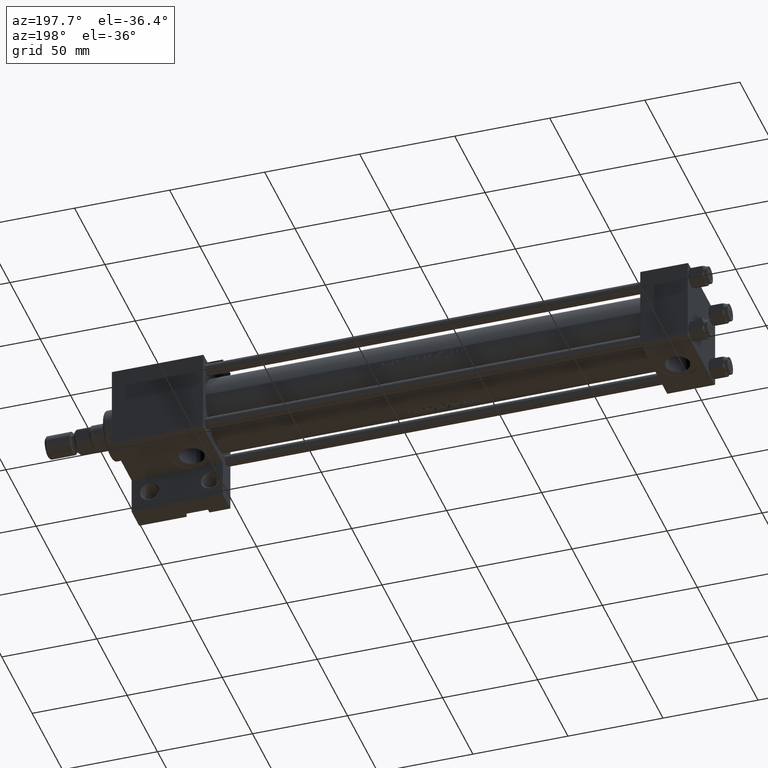
[diagram: clean part render]
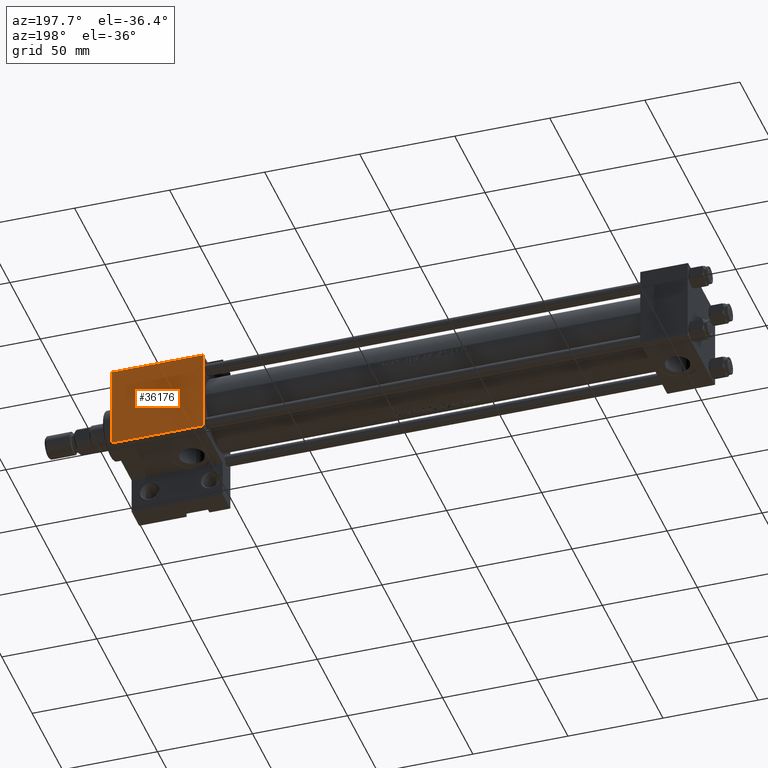
[diagram: same view with one face highlighted and labeled with its STEP entity id]
A machine part, auxiliary view. The second image highlights one B-rep face of the part: STEP entity #36176.
In plain terms, the highlighted planar face has unit normal (0, -1, -0).
Its self-contained STEP definition (entity closure, byte-faithful):
#1075 = DIRECTION ( 'NONE',  ( 1.000000000000000000, 0.000000000000000000, 0.000000000000000000 ) ) ;
#1483 = VECTOR ( 'NONE', #6542, 1000.000000000000000 ) ;
#3406 = ORIENTED_EDGE ( 'NONE', *, *, #28417, .T. ) ;
#5357 = DIRECTION ( 'NONE',  ( -1.000000000000000000, 0.000000000000000000, 0.000000000000000000 ) ) ;
#6542 = DIRECTION ( 'NONE',  ( 0.000000000000000000, -1.000000000000000000, -2.312964634635742957E-16 ) ) ;
#8483 = CARTESIAN_POINT ( 'NONE',  ( 255.0000000000000000, -21.99999999999995381, 22.49999999999999289 ) ) ;
#9678 = EDGE_CURVE ( 'NONE', #45796, #34855, #28319, .T. ) ;
#11317 = VERTEX_POINT ( 'NONE', #17136 ) ;
#12182 = ORIENTED_EDGE ( 'NONE', *, *, #27994, .T. ) ;
#12661 = CARTESIAN_POINT ( 'NONE',  ( 255.0000000000000000, 21.99999999999997513, 22.50000000000000355 ) ) ;
#13452 = CARTESIAN_POINT ( 'NONE',  ( 255.0000000000000000, 22.50000000000000355, 22.50000000000000355 ) ) ;
#15678 = CARTESIAN_POINT ( 'NONE',  ( 303.0000000000000000, -21.99999999999995381, 22.49999999999999289 ) ) ;
#16004 = EDGE_CURVE ( 'NONE', #11317, #32193, #38930, .T. ) ;
#16406 = DIRECTION ( 'NONE',  ( 0.000000000000000000, 1.000000000000000000, 2.312964634635742957E-16 ) ) ;
#16645 = DIRECTION ( 'NONE',  ( 0.000000000000000000, 2.312964634635742957E-16, -1.000000000000000000 ) ) ;
#17136 = CARTESIAN_POINT ( 'NONE',  ( 303.0000000000000000, 21.99999999999997513, 22.50000000000000355 ) ) ;
#19588 = LINE ( 'NONE', #26168, #30699 ) ;
#22372 = ORIENTED_EDGE ( 'NONE', *, *, #9678, .T. ) ;
#22512 = EDGE_LOOP ( 'NONE', ( #35781, #12182, #22372, #3406 ) ) ;
#26168 = CARTESIAN_POINT ( 'NONE',  ( 303.0000000000000000, -21.99999999999996803, 22.49999999999999289 ) ) ;
#27386 = PLANE ( 'NONE',  #38809 ) ;
#27994 = EDGE_CURVE ( 'NONE', #11317, #45796, #42616, .T. ) ;
#28319 = LINE ( 'NONE', #13452, #33177 ) ;
#28417 = EDGE_CURVE ( 'NONE', #34855, #32193, #19588, .T. ) ;
#30699 = VECTOR ( 'NONE', #1075, 1000.000000000000000 ) ;
#30804 = FACE_OUTER_BOUND ( 'NONE', #22512, .T. ) ;
#31974 = DIRECTION ( 'NONE',  ( 0.000000000000000000, -1.000000000000000000, -2.312964634635742957E-16 ) ) ;
#32193 = VERTEX_POINT ( 'NONE', #15678 ) ;
#33177 = VECTOR ( 'NONE', #31974, 1000.000000000000000 ) ;
#33314 = CARTESIAN_POINT ( 'NONE',  ( 255.0000000000000000, 21.99999999999997513, 22.50000000000000355 ) ) ;
#34855 = VERTEX_POINT ( 'NONE', #8483 ) ;
#35781 = ORIENTED_EDGE ( 'NONE', *, *, #16004, .F. ) ;
#36176 = ADVANCED_FACE ( 'NONE', ( #30804 ), #27386, .F. ) ;
#38809 = AXIS2_PLACEMENT_3D ( 'NONE', #42708, #16645, #16406 ) ;
#38930 = LINE ( 'NONE', #43563, #1483 ) ;
#39184 = VECTOR ( 'NONE', #5357, 1000.000000000000000 ) ;
#42616 = LINE ( 'NONE', #12661, #39184 ) ;
#42708 = CARTESIAN_POINT ( 'NONE',  ( 303.0000000000000000, 22.50000000000000355, 22.50000000000000355 ) ) ;
#43563 = CARTESIAN_POINT ( 'NONE',  ( 303.0000000000000000, 22.50000000000000355, 22.50000000000000355 ) ) ;
#45796 = VERTEX_POINT ( 'NONE', #33314 ) ;